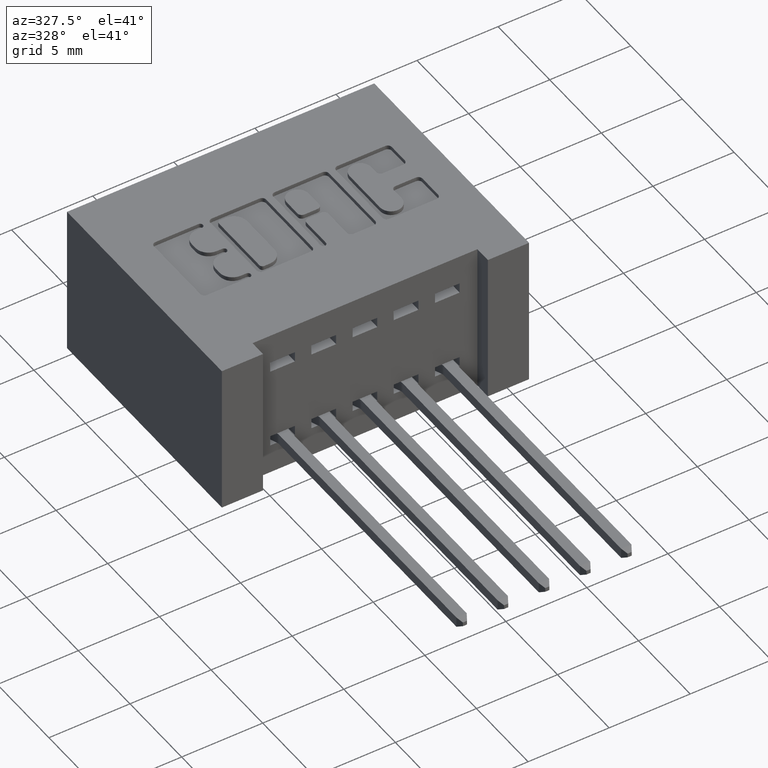
[diagram: clean part render]
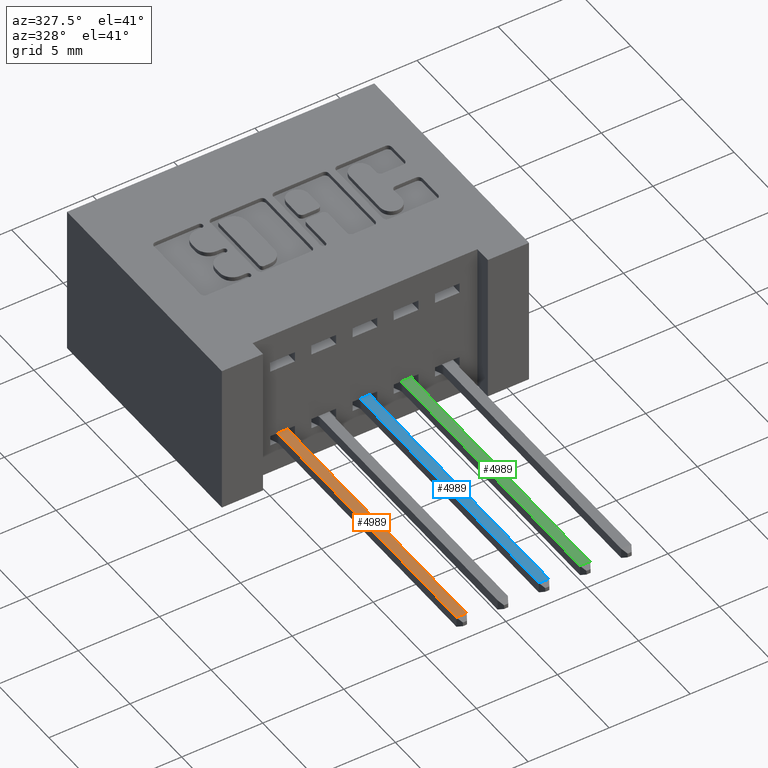
[diagram: same view with three faces highlighted in distinct colors, each labeled with its STEP entity id]
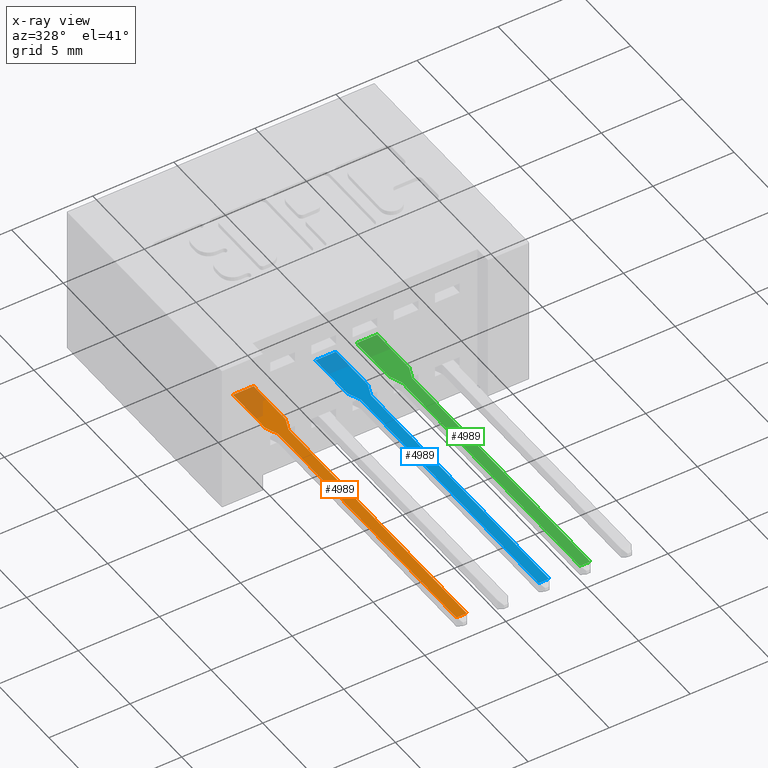
[diagram: x-ray of the same camera — body ghosted, the three highlighted faces saturated]
A machine part, auxiliary view with three faces highlighted in distinct colors.
The next image is the same camera in x-ray (body ghosted, the three faces saturated) — at least one of them is partly hidden behind the body in this view.
Their STEP definitions:

[orange] entity #4989 — the highlighted planar face has unit normal (-0, 0, -1).
#84 = DIRECTION ( 'NONE',  ( 1.000000000000000000, 4.268512490100398600E-016, 0.0000000000000000000 ) ) ;
#110 = DIRECTION ( 'NONE',  ( 4.024430764248765400E-016, -1.000000000000000000, 0.0000000000000000000 ) ) ;
#117 = AXIS2_PLACEMENT_3D ( 'NONE', #127, #110, #84 ) ;
#127 = CARTESIAN_POINT ( 'NONE',  ( 0.6132132034355963800, 0.03750000000000035900, -0.02249999999999999900 ) ) ;
#183 = DIRECTION ( 'NONE',  ( 0.0000000000000000000, -0.0000000000000000000, -1.000000000000000000 ) ) ;
#185 = EDGE_CURVE ( 'NONE', #5118, #6948, #2267, .T. ) ;
#282 = DIRECTION ( 'NONE',  ( 0.0000000000000000000, -1.000000000000000000, 0.0000000000000000000 ) ) ;
#342 = CARTESIAN_POINT ( 'NONE',  ( 0.4582132034355962900, 0.03750000000000011000, -0.05764965543462902800 ) ) ;
#470 = CARTESIAN_POINT ( 'NONE',  ( 0.5802132034355963500, 0.03750000000000011000, -0.02499999999999991800 ) ) ;
#547 = CARTESIAN_POINT ( 'NONE',  ( 0.6132132034355963800, 0.03750000000000035900, -0.01249999999999999000 ) ) ;
#688 = EDGE_LOOP ( 'NONE', ( #3643, #719, #4180, #1260, #1453, #1793, #3563, #2156, #6973, #2716 ) ) ;
#710 = AXIS2_PLACEMENT_3D ( 'NONE', #470, #282, #183 ) ;
#719 = ORIENTED_EDGE ( 'NONE', *, *, #1475, .T. ) ;
#744 = VECTOR ( 'NONE', #2508, 39.37007874015748100 ) ;
#790 = DIRECTION ( 'NONE',  ( 4.024430764248765400E-016, -1.000000000000000000, -0.0000000000000000000 ) ) ;
#1127 = CARTESIAN_POINT ( 'NONE',  ( 0.4582132034355963500, 0.03750000000000011000, -0.02499999999999991100 ) ) ;
#1219 = LINE ( 'NONE', #342, #5665 ) ;
#1230 = CARTESIAN_POINT ( 'NONE',  ( 0.5802132034355963500, 0.03750000000000011000, 0.02499999999999991800 ) ) ;
#1260 = ORIENTED_EDGE ( 'NONE', *, *, #2275, .T. ) ;
#1283 = DIRECTION ( 'NONE',  ( -0.9277062246856211400, -2.706078925535174200E-016, -0.3733110776276963900 ) ) ;
#1401 = PLANE ( 'NONE',  #710 ) ;
#1410 = CARTESIAN_POINT ( 'NONE',  ( 0.5802132034355963500, 0.03750000000000034600, 0.02499999999999991800 ) ) ;
#1453 = ORIENTED_EDGE ( 'NONE', *, *, #2036, .T. ) ;
#1475 = EDGE_CURVE ( 'NONE', #3468, #5118, #2815, .T. ) ;
#1523 = LINE ( 'NONE', #1410, #2882 ) ;
#1607 = LINE ( 'NONE', #2994, #3710 ) ;
#1793 = ORIENTED_EDGE ( 'NONE', *, *, #4886, .F. ) ;
#1839 = VERTEX_POINT ( 'NONE', #3345 ) ;
#1960 = VERTEX_POINT ( 'NONE', #6696 ) ;
#1981 = LINE ( 'NONE', #3034, #2346 ) ;
#2036 = EDGE_CURVE ( 'NONE', #7033, #1839, #1981, .T. ) ;
#2069 = CIRCLE ( 'NONE', #117, 0.01000000000000003000 ) ;
#2156 = ORIENTED_EDGE ( 'NONE', *, *, #3647, .F. ) ;
#2267 = LINE ( 'NONE', #2510, #744 ) ;
#2275 = EDGE_CURVE ( 'NONE', #6948, #7033, #2069, .T. ) ;
#2331 = CARTESIAN_POINT ( 'NONE',  ( 0.6094800926593193500, 0.03750000000000035200, -0.01322293775314377900 ) ) ;
#2346 = VECTOR ( 'NONE', #1283, 39.37007874015748900 ) ;
#2508 = DIRECTION ( 'NONE',  ( -1.000000000000000000, -4.021062490674301100E-016, 3.093124992826385400E-018 ) ) ;
#2510 = CARTESIAN_POINT ( 'NONE',  ( 0.6132132034355963800, 0.03750000000000035900, -0.01249999999999999900 ) ) ;
#2700 = CARTESIAN_POINT ( 'NONE',  ( 0.4582132034355963500, 0.03750000000000011000, 0.02499999999999991100 ) ) ;
#2716 = ORIENTED_EDGE ( 'NONE', *, *, #6605, .T. ) ;
#2815 = LINE ( 'NONE', #6800, #5709 ) ;
#2882 = VECTOR ( 'NONE', #4410, 39.37007874015748900 ) ;
#2994 = CARTESIAN_POINT ( 'NONE',  ( 0.6132132034355963800, 0.03750000000000035900, 0.01249999999999999900 ) ) ;
#3025 = DIRECTION ( 'NONE',  ( 1.000000000000000000, 4.021062490674301100E-016, 3.093124992826385400E-018 ) ) ;
#3034 = CARTESIAN_POINT ( 'NONE',  ( 0.5802132034355963500, 0.03750000000000034600, -0.02499999999999991800 ) ) ;
#3345 = CARTESIAN_POINT ( 'NONE',  ( 0.5802132034355963500, 0.03750000000000011000, -0.02499999999999991800 ) ) ;
#3468 = VERTEX_POINT ( 'NONE', #4345 ) ;
#3563 = ORIENTED_EDGE ( 'NONE', *, *, #6136, .T. ) ;
#3643 = ORIENTED_EDGE ( 'NONE', *, *, #4974, .T. ) ;
#3647 = EDGE_CURVE ( 'NONE', #4533, #5553, #6433, .T. ) ;
#3654 = VERTEX_POINT ( 'NONE', #5047 ) ;
#3710 = VECTOR ( 'NONE', #3025, 39.37007874015748100 ) ;
#3856 = DIRECTION ( 'NONE',  ( 0.0000000000000000000, 0.0000000000000000000, 1.000000000000000000 ) ) ;
#3947 = CARTESIAN_POINT ( 'NONE',  ( 0.6094800926593193500, 0.03750000000000035900, 0.01322293775314378700 ) ) ;
#4180 = ORIENTED_EDGE ( 'NONE', *, *, #185, .T. ) ;
#4273 = CARTESIAN_POINT ( 'NONE',  ( 0.6132132034355963800, 0.03750000000000035900, 0.02249999999999999900 ) ) ;
#4345 = CARTESIAN_POINT ( 'NONE',  ( 1.290213203435596200, 0.03750000000000063000, 0.01250000000000000100 ) ) ;
#4410 = DIRECTION ( 'NONE',  ( 0.9277062246856211400, 2.706078925535174200E-016, -0.3733110776276963900 ) ) ;
#4533 = VERTEX_POINT ( 'NONE', #1230 ) ;
#4548 = VECTOR ( 'NONE', #6529, 39.37007874015748100 ) ;
#4771 = DIRECTION ( 'NONE',  ( 1.000000000000000000, 0.0000000000000000000, -3.498780729590502200E-017 ) ) ;
#4788 = EDGE_CURVE ( 'NONE', #4533, #5599, #1523, .T. ) ;
#4850 = DIRECTION ( 'NONE',  ( -1.000000000000000000, -4.268512490100398600E-016, 0.0000000000000000000 ) ) ;
#4886 = EDGE_CURVE ( 'NONE', #3654, #1839, #6777, .T. ) ;
#4974 = EDGE_CURVE ( 'NONE', #1960, #3468, #1607, .T. ) ;
#4989 = ADVANCED_FACE ( 'NONE', ( #7378 ), #1401, .F. ) ;
#5047 = CARTESIAN_POINT ( 'NONE',  ( 0.4582132034355963500, 0.03750000000000011000, -0.02499999999999991100 ) ) ;
#5118 = VERTEX_POINT ( 'NONE', #6127 ) ;
#5416 = VECTOR ( 'NONE', #4771, 39.37007874015748100 ) ;
#5553 = VERTEX_POINT ( 'NONE', #2700 ) ;
#5599 = VERTEX_POINT ( 'NONE', #3947 ) ;
#5665 = VECTOR ( 'NONE', #3856, 39.37007874015748100 ) ;
#5709 = VECTOR ( 'NONE', #6733, 39.37007874015748100 ) ;
#6127 = CARTESIAN_POINT ( 'NONE',  ( 1.290213203435596200, 0.03750000000000063000, -0.01250000000000000100 ) ) ;
#6136 = EDGE_CURVE ( 'NONE', #3654, #5553, #1219, .T. ) ;
#6216 = AXIS2_PLACEMENT_3D ( 'NONE', #4273, #790, #4850 ) ;
#6433 = LINE ( 'NONE', #6618, #4548 ) ;
#6529 = DIRECTION ( 'NONE',  ( -1.000000000000000000, -0.0000000000000000000, -3.498780729590502200E-017 ) ) ;
#6605 = EDGE_CURVE ( 'NONE', #5599, #1960, #6837, .T. ) ;
#6618 = CARTESIAN_POINT ( 'NONE',  ( 0.4582132034355963500, 0.03750000000000011000, 0.02499999999999991100 ) ) ;
#6696 = CARTESIAN_POINT ( 'NONE',  ( 0.6132132034355963800, 0.03750000000000035900, 0.01249999999999999900 ) ) ;
#6733 = DIRECTION ( 'NONE',  ( 0.0000000000000000000, 0.0000000000000000000, -1.000000000000000000 ) ) ;
#6777 = LINE ( 'NONE', #1127, #5416 ) ;
#6800 = CARTESIAN_POINT ( 'NONE',  ( 1.290213203435596200, 0.03750000000000011000, -0.01250000000000000100 ) ) ;
#6837 = CIRCLE ( 'NONE', #6216, 0.01000000000000003000 ) ;
#6948 = VERTEX_POINT ( 'NONE', #547 ) ;
#6973 = ORIENTED_EDGE ( 'NONE', *, *, #4788, .T. ) ;
#7033 = VERTEX_POINT ( 'NONE', #2331 ) ;
#7378 = FACE_OUTER_BOUND ( 'NONE', #688, .T. ) ;

[blue] entity #4989 — the highlighted planar face has unit normal (-0, 0, -1).
#84 = DIRECTION ( 'NONE',  ( 1.000000000000000000, 4.268512490100398600E-016, 0.0000000000000000000 ) ) ;
#110 = DIRECTION ( 'NONE',  ( 4.024430764248765400E-016, -1.000000000000000000, 0.0000000000000000000 ) ) ;
#117 = AXIS2_PLACEMENT_3D ( 'NONE', #127, #110, #84 ) ;
#127 = CARTESIAN_POINT ( 'NONE',  ( 0.6132132034355963800, 0.03750000000000035900, -0.02249999999999999900 ) ) ;
#183 = DIRECTION ( 'NONE',  ( 0.0000000000000000000, -0.0000000000000000000, -1.000000000000000000 ) ) ;
#185 = EDGE_CURVE ( 'NONE', #5118, #6948, #2267, .T. ) ;
#282 = DIRECTION ( 'NONE',  ( 0.0000000000000000000, -1.000000000000000000, 0.0000000000000000000 ) ) ;
#342 = CARTESIAN_POINT ( 'NONE',  ( 0.4582132034355962900, 0.03750000000000011000, -0.05764965543462902800 ) ) ;
#470 = CARTESIAN_POINT ( 'NONE',  ( 0.5802132034355963500, 0.03750000000000011000, -0.02499999999999991800 ) ) ;
#547 = CARTESIAN_POINT ( 'NONE',  ( 0.6132132034355963800, 0.03750000000000035900, -0.01249999999999999000 ) ) ;
#688 = EDGE_LOOP ( 'NONE', ( #3643, #719, #4180, #1260, #1453, #1793, #3563, #2156, #6973, #2716 ) ) ;
#710 = AXIS2_PLACEMENT_3D ( 'NONE', #470, #282, #183 ) ;
#719 = ORIENTED_EDGE ( 'NONE', *, *, #1475, .T. ) ;
#744 = VECTOR ( 'NONE', #2508, 39.37007874015748100 ) ;
#790 = DIRECTION ( 'NONE',  ( 4.024430764248765400E-016, -1.000000000000000000, -0.0000000000000000000 ) ) ;
#1127 = CARTESIAN_POINT ( 'NONE',  ( 0.4582132034355963500, 0.03750000000000011000, -0.02499999999999991100 ) ) ;
#1219 = LINE ( 'NONE', #342, #5665 ) ;
#1230 = CARTESIAN_POINT ( 'NONE',  ( 0.5802132034355963500, 0.03750000000000011000, 0.02499999999999991800 ) ) ;
#1260 = ORIENTED_EDGE ( 'NONE', *, *, #2275, .T. ) ;
#1283 = DIRECTION ( 'NONE',  ( -0.9277062246856211400, -2.706078925535174200E-016, -0.3733110776276963900 ) ) ;
#1401 = PLANE ( 'NONE',  #710 ) ;
#1410 = CARTESIAN_POINT ( 'NONE',  ( 0.5802132034355963500, 0.03750000000000034600, 0.02499999999999991800 ) ) ;
#1453 = ORIENTED_EDGE ( 'NONE', *, *, #2036, .T. ) ;
#1475 = EDGE_CURVE ( 'NONE', #3468, #5118, #2815, .T. ) ;
#1523 = LINE ( 'NONE', #1410, #2882 ) ;
#1607 = LINE ( 'NONE', #2994, #3710 ) ;
#1793 = ORIENTED_EDGE ( 'NONE', *, *, #4886, .F. ) ;
#1839 = VERTEX_POINT ( 'NONE', #3345 ) ;
#1960 = VERTEX_POINT ( 'NONE', #6696 ) ;
#1981 = LINE ( 'NONE', #3034, #2346 ) ;
#2036 = EDGE_CURVE ( 'NONE', #7033, #1839, #1981, .T. ) ;
#2069 = CIRCLE ( 'NONE', #117, 0.01000000000000003000 ) ;
#2156 = ORIENTED_EDGE ( 'NONE', *, *, #3647, .F. ) ;
#2267 = LINE ( 'NONE', #2510, #744 ) ;
#2275 = EDGE_CURVE ( 'NONE', #6948, #7033, #2069, .T. ) ;
#2331 = CARTESIAN_POINT ( 'NONE',  ( 0.6094800926593193500, 0.03750000000000035200, -0.01322293775314377900 ) ) ;
#2346 = VECTOR ( 'NONE', #1283, 39.37007874015748900 ) ;
#2508 = DIRECTION ( 'NONE',  ( -1.000000000000000000, -4.021062490674301100E-016, 3.093124992826385400E-018 ) ) ;
#2510 = CARTESIAN_POINT ( 'NONE',  ( 0.6132132034355963800, 0.03750000000000035900, -0.01249999999999999900 ) ) ;
#2700 = CARTESIAN_POINT ( 'NONE',  ( 0.4582132034355963500, 0.03750000000000011000, 0.02499999999999991100 ) ) ;
#2716 = ORIENTED_EDGE ( 'NONE', *, *, #6605, .T. ) ;
#2815 = LINE ( 'NONE', #6800, #5709 ) ;
#2882 = VECTOR ( 'NONE', #4410, 39.37007874015748900 ) ;
#2994 = CARTESIAN_POINT ( 'NONE',  ( 0.6132132034355963800, 0.03750000000000035900, 0.01249999999999999900 ) ) ;
#3025 = DIRECTION ( 'NONE',  ( 1.000000000000000000, 4.021062490674301100E-016, 3.093124992826385400E-018 ) ) ;
#3034 = CARTESIAN_POINT ( 'NONE',  ( 0.5802132034355963500, 0.03750000000000034600, -0.02499999999999991800 ) ) ;
#3345 = CARTESIAN_POINT ( 'NONE',  ( 0.5802132034355963500, 0.03750000000000011000, -0.02499999999999991800 ) ) ;
#3468 = VERTEX_POINT ( 'NONE', #4345 ) ;
#3563 = ORIENTED_EDGE ( 'NONE', *, *, #6136, .T. ) ;
#3643 = ORIENTED_EDGE ( 'NONE', *, *, #4974, .T. ) ;
#3647 = EDGE_CURVE ( 'NONE', #4533, #5553, #6433, .T. ) ;
#3654 = VERTEX_POINT ( 'NONE', #5047 ) ;
#3710 = VECTOR ( 'NONE', #3025, 39.37007874015748100 ) ;
#3856 = DIRECTION ( 'NONE',  ( 0.0000000000000000000, 0.0000000000000000000, 1.000000000000000000 ) ) ;
#3947 = CARTESIAN_POINT ( 'NONE',  ( 0.6094800926593193500, 0.03750000000000035900, 0.01322293775314378700 ) ) ;
#4180 = ORIENTED_EDGE ( 'NONE', *, *, #185, .T. ) ;
#4273 = CARTESIAN_POINT ( 'NONE',  ( 0.6132132034355963800, 0.03750000000000035900, 0.02249999999999999900 ) ) ;
#4345 = CARTESIAN_POINT ( 'NONE',  ( 1.290213203435596200, 0.03750000000000063000, 0.01250000000000000100 ) ) ;
#4410 = DIRECTION ( 'NONE',  ( 0.9277062246856211400, 2.706078925535174200E-016, -0.3733110776276963900 ) ) ;
#4533 = VERTEX_POINT ( 'NONE', #1230 ) ;
#4548 = VECTOR ( 'NONE', #6529, 39.37007874015748100 ) ;
#4771 = DIRECTION ( 'NONE',  ( 1.000000000000000000, 0.0000000000000000000, -3.498780729590502200E-017 ) ) ;
#4788 = EDGE_CURVE ( 'NONE', #4533, #5599, #1523, .T. ) ;
#4850 = DIRECTION ( 'NONE',  ( -1.000000000000000000, -4.268512490100398600E-016, 0.0000000000000000000 ) ) ;
#4886 = EDGE_CURVE ( 'NONE', #3654, #1839, #6777, .T. ) ;
#4974 = EDGE_CURVE ( 'NONE', #1960, #3468, #1607, .T. ) ;
#4989 = ADVANCED_FACE ( 'NONE', ( #7378 ), #1401, .F. ) ;
#5047 = CARTESIAN_POINT ( 'NONE',  ( 0.4582132034355963500, 0.03750000000000011000, -0.02499999999999991100 ) ) ;
#5118 = VERTEX_POINT ( 'NONE', #6127 ) ;
#5416 = VECTOR ( 'NONE', #4771, 39.37007874015748100 ) ;
#5553 = VERTEX_POINT ( 'NONE', #2700 ) ;
#5599 = VERTEX_POINT ( 'NONE', #3947 ) ;
#5665 = VECTOR ( 'NONE', #3856, 39.37007874015748100 ) ;
#5709 = VECTOR ( 'NONE', #6733, 39.37007874015748100 ) ;
#6127 = CARTESIAN_POINT ( 'NONE',  ( 1.290213203435596200, 0.03750000000000063000, -0.01250000000000000100 ) ) ;
#6136 = EDGE_CURVE ( 'NONE', #3654, #5553, #1219, .T. ) ;
#6216 = AXIS2_PLACEMENT_3D ( 'NONE', #4273, #790, #4850 ) ;
#6433 = LINE ( 'NONE', #6618, #4548 ) ;
#6529 = DIRECTION ( 'NONE',  ( -1.000000000000000000, -0.0000000000000000000, -3.498780729590502200E-017 ) ) ;
#6605 = EDGE_CURVE ( 'NONE', #5599, #1960, #6837, .T. ) ;
#6618 = CARTESIAN_POINT ( 'NONE',  ( 0.4582132034355963500, 0.03750000000000011000, 0.02499999999999991100 ) ) ;
#6696 = CARTESIAN_POINT ( 'NONE',  ( 0.6132132034355963800, 0.03750000000000035900, 0.01249999999999999900 ) ) ;
#6733 = DIRECTION ( 'NONE',  ( 0.0000000000000000000, 0.0000000000000000000, -1.000000000000000000 ) ) ;
#6777 = LINE ( 'NONE', #1127, #5416 ) ;
#6800 = CARTESIAN_POINT ( 'NONE',  ( 1.290213203435596200, 0.03750000000000011000, -0.01250000000000000100 ) ) ;
#6837 = CIRCLE ( 'NONE', #6216, 0.01000000000000003000 ) ;
#6948 = VERTEX_POINT ( 'NONE', #547 ) ;
#6973 = ORIENTED_EDGE ( 'NONE', *, *, #4788, .T. ) ;
#7033 = VERTEX_POINT ( 'NONE', #2331 ) ;
#7378 = FACE_OUTER_BOUND ( 'NONE', #688, .T. ) ;

[green] entity #4989 — the highlighted planar face has unit normal (-0, 0, -1).
#84 = DIRECTION ( 'NONE',  ( 1.000000000000000000, 4.268512490100398600E-016, 0.0000000000000000000 ) ) ;
#110 = DIRECTION ( 'NONE',  ( 4.024430764248765400E-016, -1.000000000000000000, 0.0000000000000000000 ) ) ;
#117 = AXIS2_PLACEMENT_3D ( 'NONE', #127, #110, #84 ) ;
#127 = CARTESIAN_POINT ( 'NONE',  ( 0.6132132034355963800, 0.03750000000000035900, -0.02249999999999999900 ) ) ;
#183 = DIRECTION ( 'NONE',  ( 0.0000000000000000000, -0.0000000000000000000, -1.000000000000000000 ) ) ;
#185 = EDGE_CURVE ( 'NONE', #5118, #6948, #2267, .T. ) ;
#282 = DIRECTION ( 'NONE',  ( 0.0000000000000000000, -1.000000000000000000, 0.0000000000000000000 ) ) ;
#342 = CARTESIAN_POINT ( 'NONE',  ( 0.4582132034355962900, 0.03750000000000011000, -0.05764965543462902800 ) ) ;
#470 = CARTESIAN_POINT ( 'NONE',  ( 0.5802132034355963500, 0.03750000000000011000, -0.02499999999999991800 ) ) ;
#547 = CARTESIAN_POINT ( 'NONE',  ( 0.6132132034355963800, 0.03750000000000035900, -0.01249999999999999000 ) ) ;
#688 = EDGE_LOOP ( 'NONE', ( #3643, #719, #4180, #1260, #1453, #1793, #3563, #2156, #6973, #2716 ) ) ;
#710 = AXIS2_PLACEMENT_3D ( 'NONE', #470, #282, #183 ) ;
#719 = ORIENTED_EDGE ( 'NONE', *, *, #1475, .T. ) ;
#744 = VECTOR ( 'NONE', #2508, 39.37007874015748100 ) ;
#790 = DIRECTION ( 'NONE',  ( 4.024430764248765400E-016, -1.000000000000000000, -0.0000000000000000000 ) ) ;
#1127 = CARTESIAN_POINT ( 'NONE',  ( 0.4582132034355963500, 0.03750000000000011000, -0.02499999999999991100 ) ) ;
#1219 = LINE ( 'NONE', #342, #5665 ) ;
#1230 = CARTESIAN_POINT ( 'NONE',  ( 0.5802132034355963500, 0.03750000000000011000, 0.02499999999999991800 ) ) ;
#1260 = ORIENTED_EDGE ( 'NONE', *, *, #2275, .T. ) ;
#1283 = DIRECTION ( 'NONE',  ( -0.9277062246856211400, -2.706078925535174200E-016, -0.3733110776276963900 ) ) ;
#1401 = PLANE ( 'NONE',  #710 ) ;
#1410 = CARTESIAN_POINT ( 'NONE',  ( 0.5802132034355963500, 0.03750000000000034600, 0.02499999999999991800 ) ) ;
#1453 = ORIENTED_EDGE ( 'NONE', *, *, #2036, .T. ) ;
#1475 = EDGE_CURVE ( 'NONE', #3468, #5118, #2815, .T. ) ;
#1523 = LINE ( 'NONE', #1410, #2882 ) ;
#1607 = LINE ( 'NONE', #2994, #3710 ) ;
#1793 = ORIENTED_EDGE ( 'NONE', *, *, #4886, .F. ) ;
#1839 = VERTEX_POINT ( 'NONE', #3345 ) ;
#1960 = VERTEX_POINT ( 'NONE', #6696 ) ;
#1981 = LINE ( 'NONE', #3034, #2346 ) ;
#2036 = EDGE_CURVE ( 'NONE', #7033, #1839, #1981, .T. ) ;
#2069 = CIRCLE ( 'NONE', #117, 0.01000000000000003000 ) ;
#2156 = ORIENTED_EDGE ( 'NONE', *, *, #3647, .F. ) ;
#2267 = LINE ( 'NONE', #2510, #744 ) ;
#2275 = EDGE_CURVE ( 'NONE', #6948, #7033, #2069, .T. ) ;
#2331 = CARTESIAN_POINT ( 'NONE',  ( 0.6094800926593193500, 0.03750000000000035200, -0.01322293775314377900 ) ) ;
#2346 = VECTOR ( 'NONE', #1283, 39.37007874015748900 ) ;
#2508 = DIRECTION ( 'NONE',  ( -1.000000000000000000, -4.021062490674301100E-016, 3.093124992826385400E-018 ) ) ;
#2510 = CARTESIAN_POINT ( 'NONE',  ( 0.6132132034355963800, 0.03750000000000035900, -0.01249999999999999900 ) ) ;
#2700 = CARTESIAN_POINT ( 'NONE',  ( 0.4582132034355963500, 0.03750000000000011000, 0.02499999999999991100 ) ) ;
#2716 = ORIENTED_EDGE ( 'NONE', *, *, #6605, .T. ) ;
#2815 = LINE ( 'NONE', #6800, #5709 ) ;
#2882 = VECTOR ( 'NONE', #4410, 39.37007874015748900 ) ;
#2994 = CARTESIAN_POINT ( 'NONE',  ( 0.6132132034355963800, 0.03750000000000035900, 0.01249999999999999900 ) ) ;
#3025 = DIRECTION ( 'NONE',  ( 1.000000000000000000, 4.021062490674301100E-016, 3.093124992826385400E-018 ) ) ;
#3034 = CARTESIAN_POINT ( 'NONE',  ( 0.5802132034355963500, 0.03750000000000034600, -0.02499999999999991800 ) ) ;
#3345 = CARTESIAN_POINT ( 'NONE',  ( 0.5802132034355963500, 0.03750000000000011000, -0.02499999999999991800 ) ) ;
#3468 = VERTEX_POINT ( 'NONE', #4345 ) ;
#3563 = ORIENTED_EDGE ( 'NONE', *, *, #6136, .T. ) ;
#3643 = ORIENTED_EDGE ( 'NONE', *, *, #4974, .T. ) ;
#3647 = EDGE_CURVE ( 'NONE', #4533, #5553, #6433, .T. ) ;
#3654 = VERTEX_POINT ( 'NONE', #5047 ) ;
#3710 = VECTOR ( 'NONE', #3025, 39.37007874015748100 ) ;
#3856 = DIRECTION ( 'NONE',  ( 0.0000000000000000000, 0.0000000000000000000, 1.000000000000000000 ) ) ;
#3947 = CARTESIAN_POINT ( 'NONE',  ( 0.6094800926593193500, 0.03750000000000035900, 0.01322293775314378700 ) ) ;
#4180 = ORIENTED_EDGE ( 'NONE', *, *, #185, .T. ) ;
#4273 = CARTESIAN_POINT ( 'NONE',  ( 0.6132132034355963800, 0.03750000000000035900, 0.02249999999999999900 ) ) ;
#4345 = CARTESIAN_POINT ( 'NONE',  ( 1.290213203435596200, 0.03750000000000063000, 0.01250000000000000100 ) ) ;
#4410 = DIRECTION ( 'NONE',  ( 0.9277062246856211400, 2.706078925535174200E-016, -0.3733110776276963900 ) ) ;
#4533 = VERTEX_POINT ( 'NONE', #1230 ) ;
#4548 = VECTOR ( 'NONE', #6529, 39.37007874015748100 ) ;
#4771 = DIRECTION ( 'NONE',  ( 1.000000000000000000, 0.0000000000000000000, -3.498780729590502200E-017 ) ) ;
#4788 = EDGE_CURVE ( 'NONE', #4533, #5599, #1523, .T. ) ;
#4850 = DIRECTION ( 'NONE',  ( -1.000000000000000000, -4.268512490100398600E-016, 0.0000000000000000000 ) ) ;
#4886 = EDGE_CURVE ( 'NONE', #3654, #1839, #6777, .T. ) ;
#4974 = EDGE_CURVE ( 'NONE', #1960, #3468, #1607, .T. ) ;
#4989 = ADVANCED_FACE ( 'NONE', ( #7378 ), #1401, .F. ) ;
#5047 = CARTESIAN_POINT ( 'NONE',  ( 0.4582132034355963500, 0.03750000000000011000, -0.02499999999999991100 ) ) ;
#5118 = VERTEX_POINT ( 'NONE', #6127 ) ;
#5416 = VECTOR ( 'NONE', #4771, 39.37007874015748100 ) ;
#5553 = VERTEX_POINT ( 'NONE', #2700 ) ;
#5599 = VERTEX_POINT ( 'NONE', #3947 ) ;
#5665 = VECTOR ( 'NONE', #3856, 39.37007874015748100 ) ;
#5709 = VECTOR ( 'NONE', #6733, 39.37007874015748100 ) ;
#6127 = CARTESIAN_POINT ( 'NONE',  ( 1.290213203435596200, 0.03750000000000063000, -0.01250000000000000100 ) ) ;
#6136 = EDGE_CURVE ( 'NONE', #3654, #5553, #1219, .T. ) ;
#6216 = AXIS2_PLACEMENT_3D ( 'NONE', #4273, #790, #4850 ) ;
#6433 = LINE ( 'NONE', #6618, #4548 ) ;
#6529 = DIRECTION ( 'NONE',  ( -1.000000000000000000, -0.0000000000000000000, -3.498780729590502200E-017 ) ) ;
#6605 = EDGE_CURVE ( 'NONE', #5599, #1960, #6837, .T. ) ;
#6618 = CARTESIAN_POINT ( 'NONE',  ( 0.4582132034355963500, 0.03750000000000011000, 0.02499999999999991100 ) ) ;
#6696 = CARTESIAN_POINT ( 'NONE',  ( 0.6132132034355963800, 0.03750000000000035900, 0.01249999999999999900 ) ) ;
#6733 = DIRECTION ( 'NONE',  ( 0.0000000000000000000, 0.0000000000000000000, -1.000000000000000000 ) ) ;
#6777 = LINE ( 'NONE', #1127, #5416 ) ;
#6800 = CARTESIAN_POINT ( 'NONE',  ( 1.290213203435596200, 0.03750000000000011000, -0.01250000000000000100 ) ) ;
#6837 = CIRCLE ( 'NONE', #6216, 0.01000000000000003000 ) ;
#6948 = VERTEX_POINT ( 'NONE', #547 ) ;
#6973 = ORIENTED_EDGE ( 'NONE', *, *, #4788, .T. ) ;
#7033 = VERTEX_POINT ( 'NONE', #2331 ) ;
#7378 = FACE_OUTER_BOUND ( 'NONE', #688, .T. ) ;